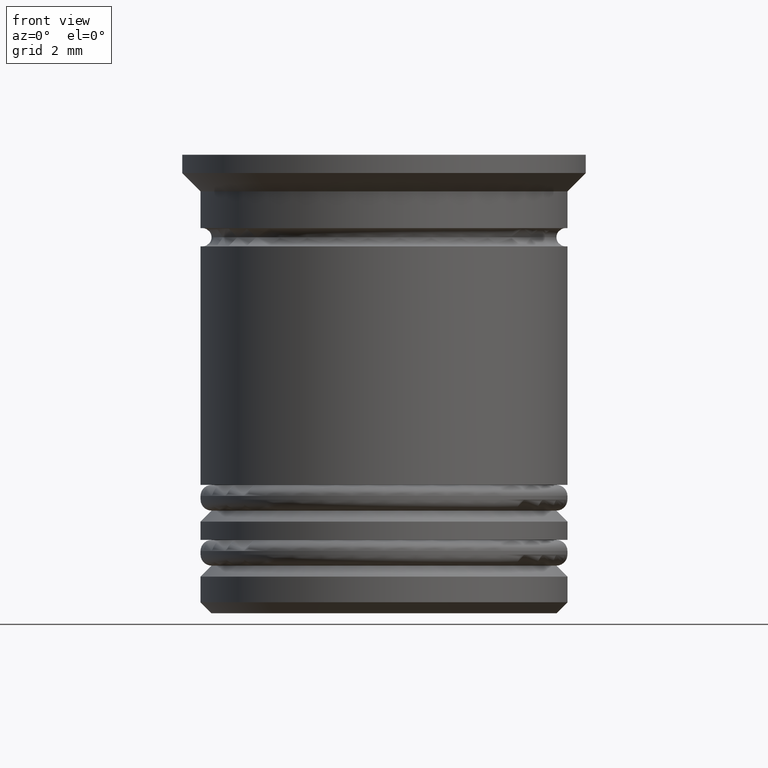
[diagram: clean part render]
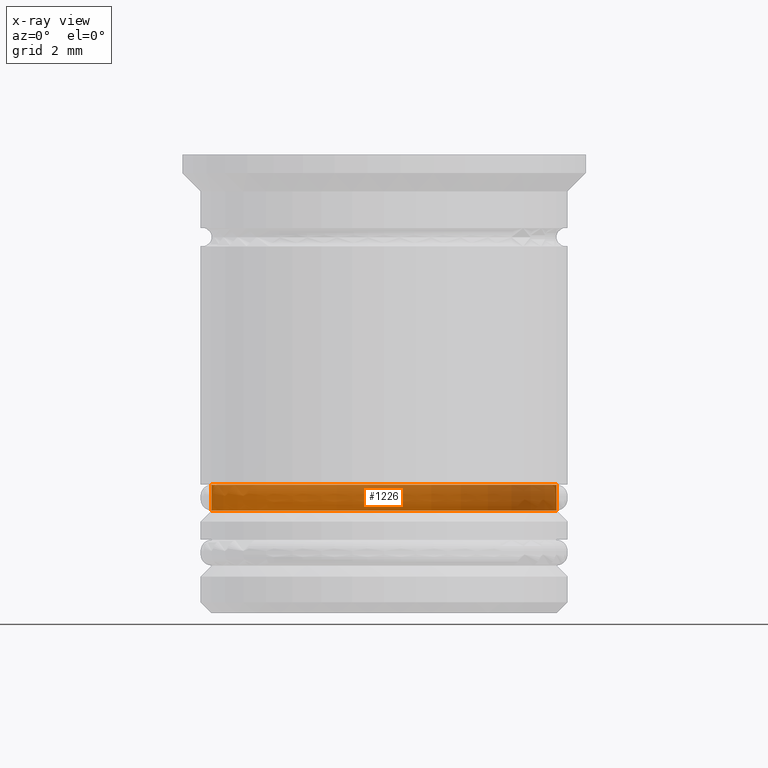
[diagram: x-ray — body ghosted, one internal face saturated and labeled with its STEP entity id]
A machine part, front view, then the same camera in x-ray: the body is ghosted and one INTERNAL B-rep face — a face not visible from any outside direction — is saturated and labeled: STEP entity #1226.
In plain terms, the highlighted cylindrical surface (partial cylindrical patch) has radius 4.7 mm, axis along (-0, -0, 1).
Its self-contained STEP definition (entity closure, byte-faithful):
#50 = VERTEX_POINT ( 'NONE', #1085 ) ;
#210 = DIRECTION ( 'NONE',  ( -0.000000000000000000, -0.000000000000000000, 1.000000000000000000 ) ) ;
#348 = ORIENTED_EDGE ( 'NONE', *, *, #1701, .T. ) ;
#376 = EDGE_LOOP ( 'NONE', ( #1614, #348, #1758, #1462 ) ) ;
#378 = EDGE_CURVE ( 'NONE', #596, #1920, #1112, .T. ) ;
#429 = CARTESIAN_POINT ( 'NONE',  ( 0.000000000000000000, 0.000000000000000000, 0.000000000000000000 ) ) ;
#459 = EDGE_CURVE ( 'NONE', #1920, #50, #957, .T. ) ;
#557 = CARTESIAN_POINT ( 'NONE',  ( -4.700000000000001066, 5.755839955992560641E-16, 0.000000000000000000 ) ) ;
#589 = CARTESIAN_POINT ( 'NONE',  ( 4.700000000000001066, 0.000000000000000000, -9.700000000000008171 ) ) ;
#596 = VERTEX_POINT ( 'NONE', #589 ) ;
#651 = CARTESIAN_POINT ( 'NONE',  ( -4.700000000000001066, 5.755839955992560641E-16, -9.700000000000008171 ) ) ;
#657 = VERTEX_POINT ( 'NONE', #651 ) ;
#757 = DIRECTION ( 'NONE',  ( 1.000000000000000000, 0.000000000000000000, 0.000000000000000000 ) ) ;
#854 = CARTESIAN_POINT ( 'NONE',  ( 0.000000000000000000, 0.000000000000000000, -9.700000000000008171 ) ) ;
#957 = CIRCLE ( 'NONE', #1163, 4.700000000000001066 ) ;
#1030 = VECTOR ( 'NONE', #1685, 1000.000000000000000 ) ;
#1072 = DIRECTION ( 'NONE',  ( -0.000000000000000000, -0.000000000000000000, 1.000000000000000000 ) ) ;
#1074 = DIRECTION ( 'NONE',  ( -0.000000000000000000, -0.000000000000000000, 1.000000000000000000 ) ) ;
#1085 = CARTESIAN_POINT ( 'NONE',  ( -4.700000000000001066, 5.755839955992560641E-16, -9.000000000000001776 ) ) ;
#1086 = VECTOR ( 'NONE', #1074, 1000.000000000000000 ) ;
#1112 = LINE ( 'NONE', #1926, #1086 ) ;
#1163 = AXIS2_PLACEMENT_3D ( 'NONE', #1465, #1335, #1953 ) ;
#1178 = DIRECTION ( 'NONE',  ( -1.000000000000000000, 0.000000000000000000, 0.000000000000000000 ) ) ;
#1226 = ADVANCED_FACE ( 'NONE', ( #1880 ), #1399, .T. ) ;
#1243 = CIRCLE ( 'NONE', #1802, 4.700000000000001066 ) ;
#1332 = CARTESIAN_POINT ( 'NONE',  ( 4.700000000000001066, 0.000000000000000000, -9.000000000000001776 ) ) ;
#1335 = DIRECTION ( 'NONE',  ( -0.000000000000000000, -0.000000000000000000, 1.000000000000000000 ) ) ;
#1399 = CYLINDRICAL_SURFACE ( 'NONE', #1937, 4.700000000000001066 ) ;
#1462 = ORIENTED_EDGE ( 'NONE', *, *, #378, .F. ) ;
#1465 = CARTESIAN_POINT ( 'NONE',  ( 0.000000000000000000, 0.000000000000000000, -9.000000000000001776 ) ) ;
#1614 = ORIENTED_EDGE ( 'NONE', *, *, #1889, .T. ) ;
#1685 = DIRECTION ( 'NONE',  ( -0.000000000000000000, -0.000000000000000000, 1.000000000000000000 ) ) ;
#1701 = EDGE_CURVE ( 'NONE', #657, #50, #1994, .T. ) ;
#1758 = ORIENTED_EDGE ( 'NONE', *, *, #459, .F. ) ;
#1802 = AXIS2_PLACEMENT_3D ( 'NONE', #854, #210, #1178 ) ;
#1880 = FACE_OUTER_BOUND ( 'NONE', #376, .T. ) ;
#1889 = EDGE_CURVE ( 'NONE', #596, #657, #1243, .T. ) ;
#1920 = VERTEX_POINT ( 'NONE', #1332 ) ;
#1926 = CARTESIAN_POINT ( 'NONE',  ( 4.700000000000001066, 0.000000000000000000, 0.000000000000000000 ) ) ;
#1937 = AXIS2_PLACEMENT_3D ( 'NONE', #429, #1072, #757 ) ;
#1953 = DIRECTION ( 'NONE',  ( 1.000000000000000000, 0.000000000000000000, 0.000000000000000000 ) ) ;
#1994 = LINE ( 'NONE', #557, #1030 ) ;